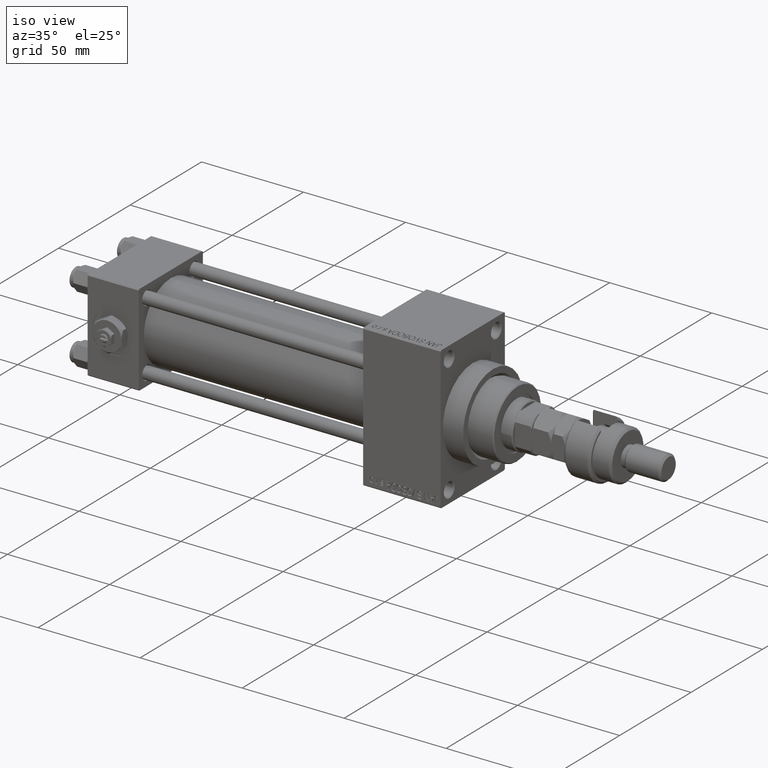
[diagram: clean part render]
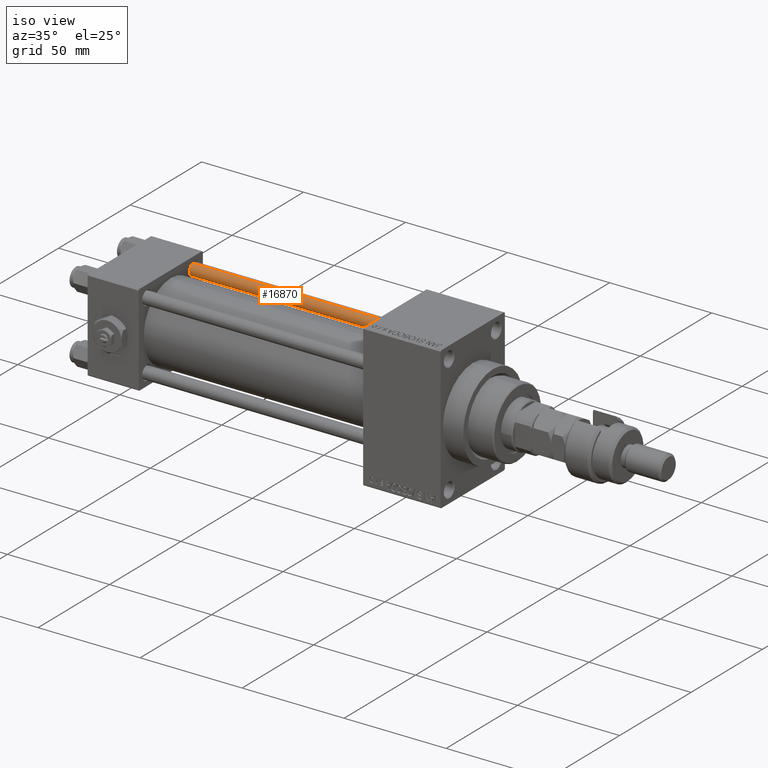
[diagram: same view with one face highlighted and labeled with its STEP entity id]
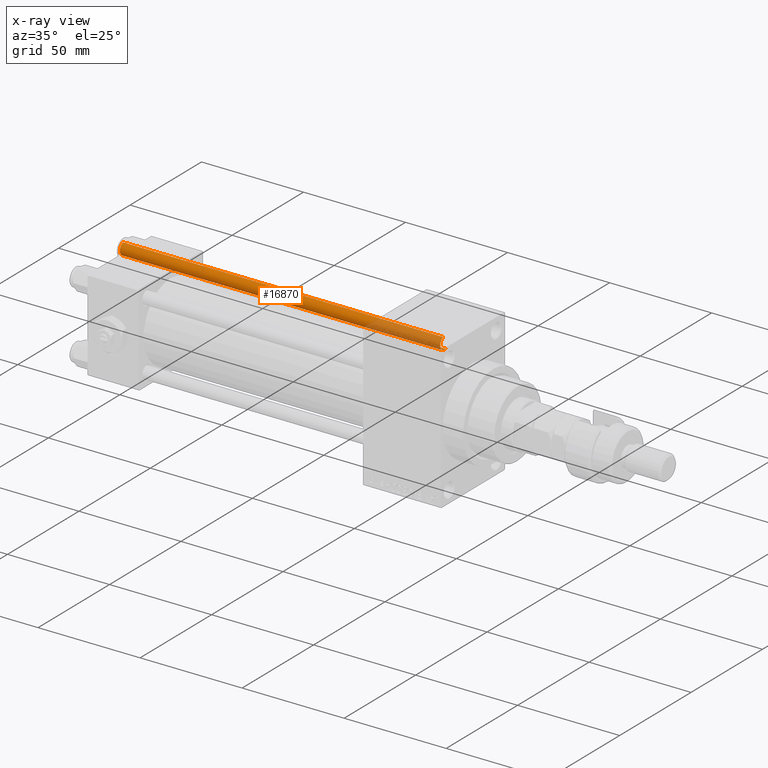
[diagram: x-ray of the same camera — body ghosted, the highlighted face saturated]
A machine part, iso view. The second image highlights one B-rep face of the part: STEP entity #16870.
The next image is the same camera in x-ray: the body ghosted, the highlighted face saturated — about 22% of this face is hidden behind the body in this view.
In plain terms, the highlighted cylindrical surface (edge-blend (fillet) strip) has radius 3 mm, axis along (-1, -0, 0).
Its self-contained STEP definition (entity closure, byte-faithful):
#744 = CARTESIAN_POINT ( 'NONE',  ( -3.000000000000000444, 0.000000000000000000, 157.5000000000000000 ) ) ;
#2080 = DIRECTION ( 'NONE',  ( -0.000000000000000000, -0.000000000000000000, -1.000000000000000000 ) ) ;
#2366 = DIRECTION ( 'NONE',  ( 1.000000000000000000, 0.000000000000000000, 0.000000000000000000 ) ) ;
#2920 = CARTESIAN_POINT ( 'NONE',  ( 3.000000000000000444, 3.673940397442060361E-16, 157.5000000000000000 ) ) ;
#3302 = VECTOR ( 'NONE', #40639, 1000.000000000000000 ) ;
#13049 = LINE ( 'NONE', #45568, #3302 ) ;
#13911 = AXIS2_PLACEMENT_3D ( 'NONE', #49719, #49452, #2366 ) ;
#14969 = ORIENTED_EDGE ( 'NONE', *, *, #44634, .F. ) ;
#16870 = ADVANCED_FACE ( 'NONE', ( #17692 ), #49431, .T. ) ;
#17083 = VERTEX_POINT ( 'NONE', #744 ) ;
#17692 = FACE_OUTER_BOUND ( 'NONE', #33880, .T. ) ;
#20252 = VERTEX_POINT ( 'NONE', #2920 ) ;
#20556 = DIRECTION ( 'NONE',  ( 0.000000000000000000, 0.000000000000000000, -1.000000000000000000 ) ) ;
#22092 = EDGE_CURVE ( 'NONE', #20252, #17083, #28212, .T. ) ;
#24815 = EDGE_CURVE ( 'NONE', #17083, #38136, #13049, .T. ) ;
#27052 = CARTESIAN_POINT ( 'NONE',  ( 3.000000000000000444, 3.673940397442060361E-16, 0.5000000000000281997 ) ) ;
#28212 = CIRCLE ( 'NONE', #40695, 3.000000000000000444 ) ;
#28663 = LINE ( 'NONE', #41410, #42068 ) ;
#29761 = VERTEX_POINT ( 'NONE', #27052 ) ;
#33880 = EDGE_LOOP ( 'NONE', ( #14969, #41537, #49488, #41293 ) ) ;
#36712 = CARTESIAN_POINT ( 'NONE',  ( -3.000000000000000444, 0.000000000000000000, 0.5000000000000281997 ) ) ;
#38136 = VERTEX_POINT ( 'NONE', #36712 ) ;
#39016 = DIRECTION ( 'NONE',  ( -1.000000000000000000, 0.000000000000000000, 0.000000000000000000 ) ) ;
#40325 = DIRECTION ( 'NONE',  ( 1.000000000000000000, 0.000000000000000000, 0.000000000000000000 ) ) ;
#40639 = DIRECTION ( 'NONE',  ( -0.000000000000000000, -0.000000000000000000, -1.000000000000000000 ) ) ;
#40695 = AXIS2_PLACEMENT_3D ( 'NONE', #49153, #20556, #40325 ) ;
#41293 = ORIENTED_EDGE ( 'NONE', *, *, #43933, .T. ) ;
#41410 = CARTESIAN_POINT ( 'NONE',  ( 3.000000000000000444, 3.673940397442060361E-16, 158.0000000000000000 ) ) ;
#41537 = ORIENTED_EDGE ( 'NONE', *, *, #22092, .T. ) ;
#41635 = CARTESIAN_POINT ( 'NONE',  ( 0.000000000000000000, 0.000000000000000000, 158.0000000000000000 ) ) ;
#42068 = VECTOR ( 'NONE', #48952, 1000.000000000000000 ) ;
#43016 = AXIS2_PLACEMENT_3D ( 'NONE', #41635, #2080, #39016 ) ;
#43808 = CIRCLE ( 'NONE', #13911, 3.000000000000000444 ) ;
#43933 = EDGE_CURVE ( 'NONE', #38136, #29761, #43808, .T. ) ;
#44634 = EDGE_CURVE ( 'NONE', #20252, #29761, #28663, .T. ) ;
#45568 = CARTESIAN_POINT ( 'NONE',  ( -3.000000000000000444, 0.000000000000000000, 158.0000000000000000 ) ) ;
#48952 = DIRECTION ( 'NONE',  ( -0.000000000000000000, -0.000000000000000000, -1.000000000000000000 ) ) ;
#49153 = CARTESIAN_POINT ( 'NONE',  ( 0.000000000000000000, 0.000000000000000000, 157.5000000000000000 ) ) ;
#49431 = CYLINDRICAL_SURFACE ( 'NONE', #43016, 3.000000000000000444 ) ;
#49452 = DIRECTION ( 'NONE',  ( -0.000000000000000000, -0.000000000000000000, 1.000000000000000000 ) ) ;
#49488 = ORIENTED_EDGE ( 'NONE', *, *, #24815, .T. ) ;
#49719 = CARTESIAN_POINT ( 'NONE',  ( 0.000000000000000000, 0.000000000000000000, 0.5000000000000281997 ) ) ;